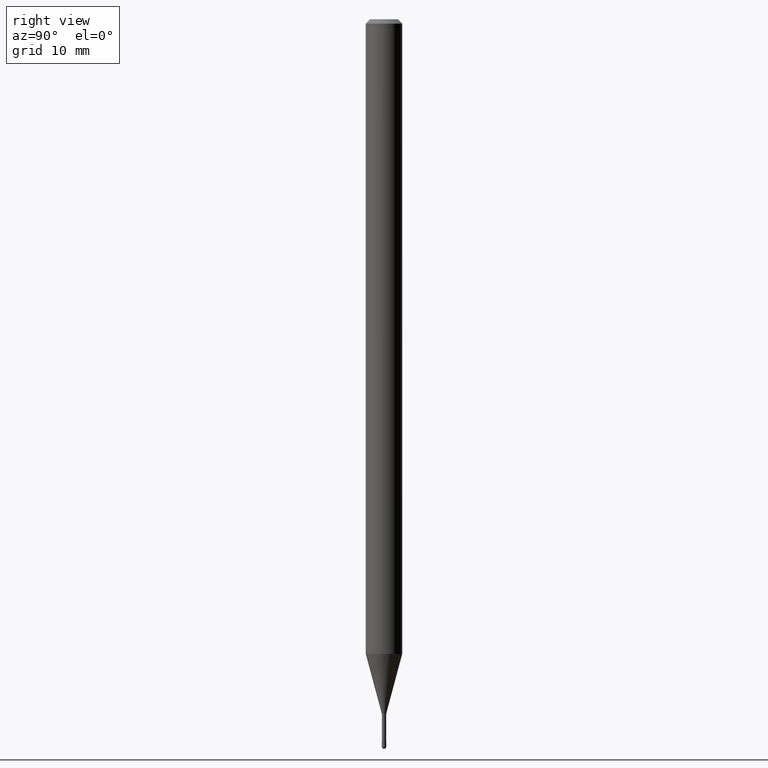
[diagram: clean part render]
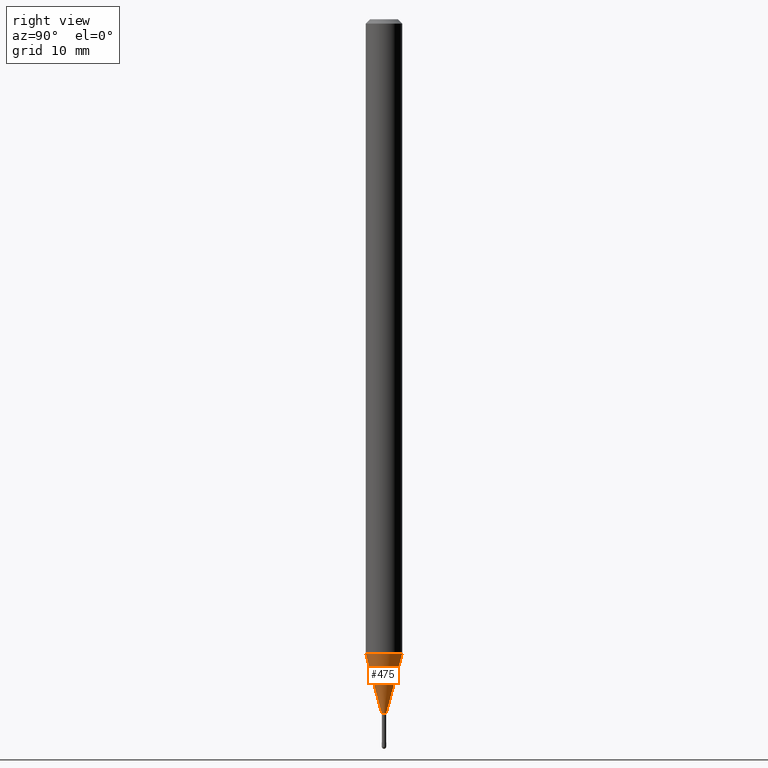
[diagram: same view with one face highlighted and labeled with its STEP entity id]
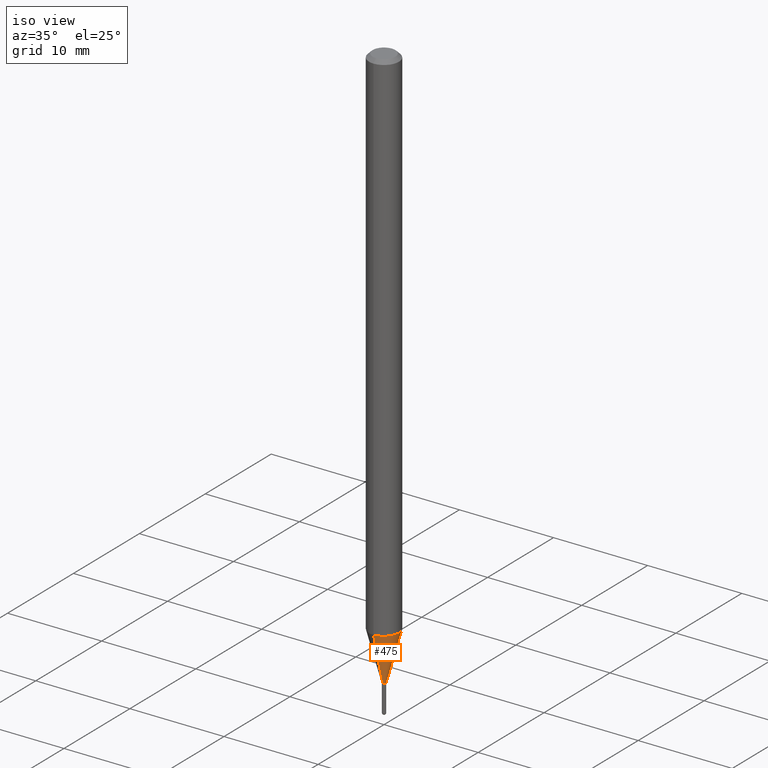
[diagram: same view with one face highlighted and labeled with its STEP entity id]
A machine part, right view. The second image highlights one B-rep face of the part: STEP entity #475.
A second angle (iso view) of the same face is appended — the face is thin or edge-on in the first view.
In plain terms, the highlighted conical surface has half-angle 15 deg.
Its self-contained STEP definition (entity closure, byte-faithful):
#13 = DIRECTION ( 'NONE',  ( -2.445490445404648555E-29, 3.491450350249176608E-15, 1.000000000000000000 ) ) ;
#21 = VECTOR ( 'NONE', #358, 39.37007874015748854 ) ;
#25 = AXIS2_PLACEMENT_3D ( 'NONE', #431, #361, #273 ) ;
#39 = CARTESIAN_POINT ( 'NONE',  ( -5.237222008259017030E-17, -0.007500000000008506806, -2.379999999999999893 ) ) ;
#60 = EDGE_CURVE ( 'NONE', #443, #91, #76, .T. ) ;
#76 = CIRCLE ( 'NONE', #25, 0.06250000000000000000 ) ;
#91 = VERTEX_POINT ( 'NONE', #508 ) ;
#90 = DIRECTION ( 'NONE',  ( -6.982962677686265922E-15, -1.000000000000000000, 0.000000000000000000 ) ) ;
#93 = ORIENTED_EDGE ( 'NONE', *, *, #255, .F. ) ;
#125 = CARTESIAN_POINT ( 'NONE',  ( 5.820267260063063544E-29, -8.309651833593039861E-15, -2.379999999999999893 ) ) ;
#126 = AXIS2_PLACEMENT_3D ( 'NONE', #125, #13, #174 ) ;
#139 = FACE_OUTER_BOUND ( 'NONE', #152, .T. ) ;
#152 = EDGE_LOOP ( 'NONE', ( #185, #341, #254, #93 ) ) ;
#164 = LINE ( 'NONE', #497, #455 ) ;
#166 = CARTESIAN_POINT ( 'NONE',  ( 2.486899575160916402E-16, 0.007499999999991888155, -2.379999999999999893 ) ) ;
#168 = VERTEX_POINT ( 'NONE', #166 ) ;
#174 = DIRECTION ( 'NONE',  ( -6.982962677686265922E-15, -1.000000000000000000, 0.000000000000000000 ) ) ;
#179 = EDGE_CURVE ( 'NONE', #168, #91, #164, .T. ) ;
#185 = ORIENTED_EDGE ( 'NONE', *, *, #288, .T. ) ;
#199 = CONICAL_SURFACE ( 'NONE', #223, 0.007500000000000197481, 0.2617993877991577345 ) ;
#223 = AXIS2_PLACEMENT_3D ( 'NONE', #409, #296, #90 ) ;
#254 = ORIENTED_EDGE ( 'NONE', *, *, #60, .F. ) ;
#255 = EDGE_CURVE ( 'NONE', #319, #443, #399, .T. ) ;
#273 = DIRECTION ( 'NONE',  ( -6.982962677686265922E-15, -1.000000000000000000, 4.370956789862821150E-15 ) ) ;
#281 = CIRCLE ( 'NONE', #126, 0.007500000000000197481 ) ;
#288 = EDGE_CURVE ( 'NONE', #319, #168, #281, .T. ) ;
#296 = DIRECTION ( 'NONE',  ( -2.445490445404648555E-29, 3.491450350249176608E-15, 1.000000000000000000 ) ) ;
#319 = VERTEX_POINT ( 'NONE', #327 ) ;
#327 = CARTESIAN_POINT ( 'NONE',  ( -5.237222008259017030E-17, -0.007500000000008506806, -2.379999999999999893 ) ) ;
#336 = DIRECTION ( 'NONE',  ( 1.839019923739651986E-15, 0.2588190451025322303, 0.9659258262890653146 ) ) ;
#341 = ORIENTED_EDGE ( 'NONE', *, *, #179, .T. ) ;
#358 = DIRECTION ( 'NONE',  ( -1.807323732225380626E-15, -0.2588190451025254024, 0.9659258262890669799 ) ) ;
#361 = DIRECTION ( 'NONE',  ( -2.445490445404648555E-29, 3.491450350249176608E-15, 1.000000000000000000 ) ) ;
#366 = CARTESIAN_POINT ( 'NONE',  ( -4.364351673553386185E-16, -0.06250000000000760503, -2.174737205583718858 ) ) ;
#399 = LINE ( 'NONE', #39, #21 ) ;
#409 = CARTESIAN_POINT ( 'NONE',  ( 5.820267260063063544E-29, -8.309651833593039861E-15, -2.379999999999999893 ) ) ;
#431 = CARTESIAN_POINT ( 'NONE',  ( 5.318299057520989727E-29, -7.592986978135192084E-15, -2.174737205583719302 ) ) ;
#443 = VERTEX_POINT ( 'NONE', #366 ) ;
#455 = VECTOR ( 'NONE', #336, 39.37007874015747433 ) ;
#475 = ADVANCED_FACE ( 'NONE', ( #139 ), #199, .T. ) ;
#497 = CARTESIAN_POINT ( 'NONE',  ( 5.329070518206711411E-17, 0.007499999999991888155, -2.379999999999999893 ) ) ;
#508 = CARTESIAN_POINT ( 'NONE',  ( 4.440892098501156671E-16, 0.06249999999999240885, -2.174737205583719746 ) ) ;